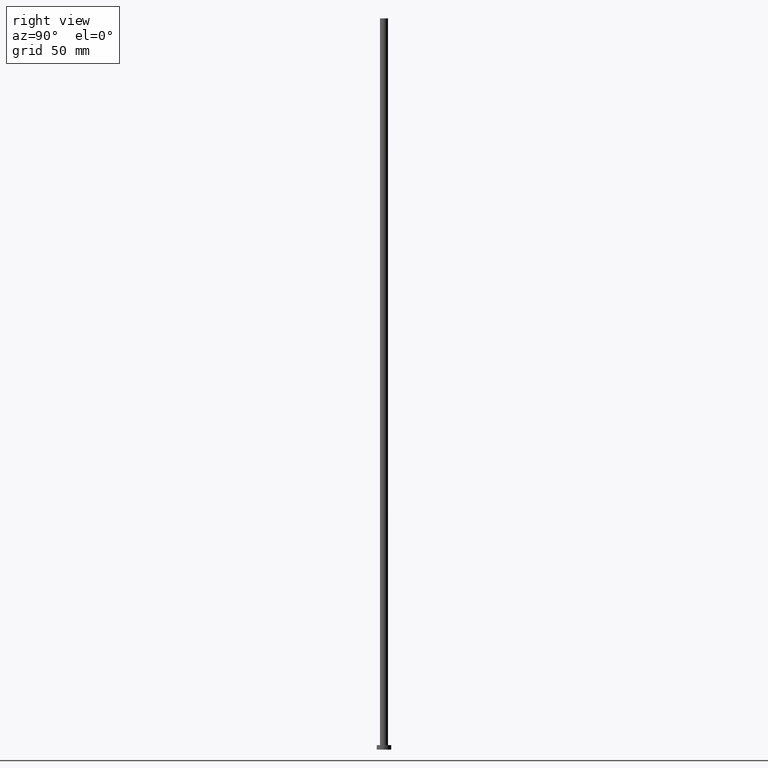
[diagram: clean part render]
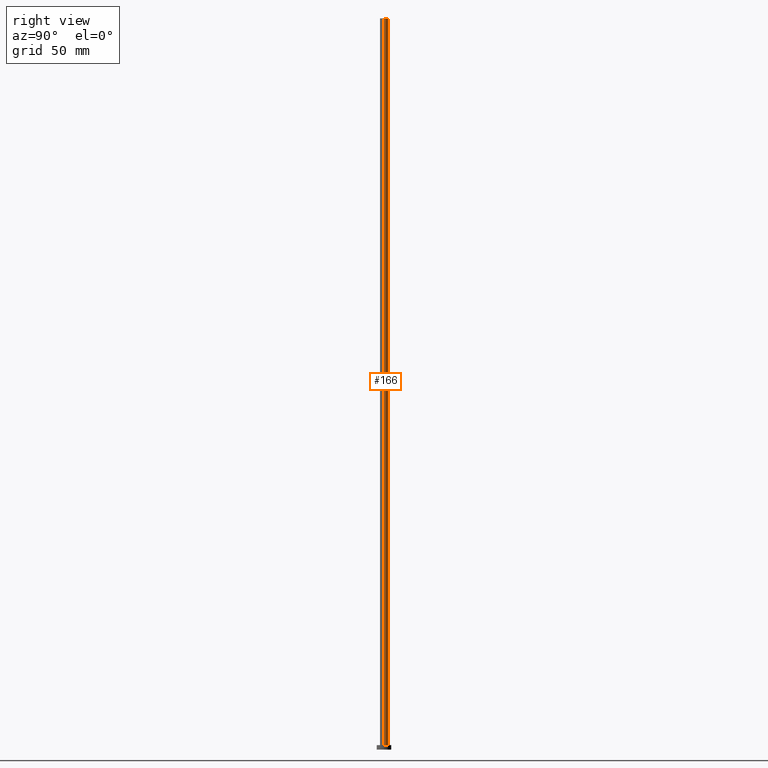
[diagram: same view with one face highlighted and labeled with its STEP entity id]
A machine part, right view. The second image highlights one B-rep face of the part: STEP entity #166.
In plain terms, the highlighted cylindrical surface (edge-blend (fillet) strip) has radius 2.75 mm, axis along (-0, -0, -1).
Its self-contained STEP definition (entity closure, byte-faithful):
#6 = VERTEX_POINT ( 'NONE', #249 ) ;
#14 = CARTESIAN_POINT ( 'NONE',  ( 2.750000000000000000, 3.367778697655220519E-16, 500.0000000000000000 ) ) ;
#15 = DIRECTION ( 'NONE',  ( -0.000000000000000000, -0.000000000000000000, -1.000000000000000000 ) ) ;
#31 = DIRECTION ( 'NONE',  ( 0.000000000000000000, 0.000000000000000000, 1.000000000000000000 ) ) ;
#42 = CARTESIAN_POINT ( 'NONE',  ( 0.000000000000000000, 0.000000000000000000, 500.0000000000000000 ) ) ;
#48 = EDGE_CURVE ( 'NONE', #6, #70, #109, .T. ) ;
#49 = AXIS2_PLACEMENT_3D ( 'NONE', #42, #242, #121 ) ;
#54 = CARTESIAN_POINT ( 'NONE',  ( 0.000000000000000000, 0.000000000000000000, 3.000000000000000000 ) ) ;
#58 = CYLINDRICAL_SURFACE ( 'NONE', #49, 2.750000000000000000 ) ;
#59 = LINE ( 'NONE', #14, #207 ) ;
#64 = FACE_OUTER_BOUND ( 'NONE', #123, .T. ) ;
#70 = VERTEX_POINT ( 'NONE', #195 ) ;
#71 = CARTESIAN_POINT ( 'NONE',  ( 2.750000000000000000, 3.367778697655220519E-16, 500.0000000000000000 ) ) ;
#72 = DIRECTION ( 'NONE',  ( 0.000000000000000000, 0.000000000000000000, 1.000000000000000000 ) ) ;
#75 = EDGE_CURVE ( 'NONE', #99, #230, #108, .T. ) ;
#81 = AXIS2_PLACEMENT_3D ( 'NONE', #54, #31, #112 ) ;
#90 = ORIENTED_EDGE ( 'NONE', *, *, #75, .F. ) ;
#99 = VERTEX_POINT ( 'NONE', #71 ) ;
#108 = CIRCLE ( 'NONE', #247, 2.750000000000000000 ) ;
#109 = CIRCLE ( 'NONE', #81, 2.750000000000000000 ) ;
#112 = DIRECTION ( 'NONE',  ( 1.000000000000000000, 0.000000000000000000, 0.000000000000000000 ) ) ;
#121 = DIRECTION ( 'NONE',  ( -1.000000000000000000, 0.000000000000000000, 0.000000000000000000 ) ) ;
#123 = EDGE_LOOP ( 'NONE', ( #90, #158, #159, #186 ) ) ;
#158 = ORIENTED_EDGE ( 'NONE', *, *, #199, .T. ) ;
#159 = ORIENTED_EDGE ( 'NONE', *, *, #48, .T. ) ;
#166 = ADVANCED_FACE ( 'NONE', ( #64 ), #58, .T. ) ;
#182 = LINE ( 'NONE', #212, #196 ) ;
#186 = ORIENTED_EDGE ( 'NONE', *, *, #188, .F. ) ;
#188 = EDGE_CURVE ( 'NONE', #230, #70, #182, .T. ) ;
#195 = CARTESIAN_POINT ( 'NONE',  ( -2.750000000000000000, 0.000000000000000000, 3.000000000000000000 ) ) ;
#196 = VECTOR ( 'NONE', #198, 1000.000000000000000 ) ;
#198 = DIRECTION ( 'NONE',  ( -0.000000000000000000, -0.000000000000000000, -1.000000000000000000 ) ) ;
#199 = EDGE_CURVE ( 'NONE', #99, #6, #59, .T. ) ;
#207 = VECTOR ( 'NONE', #15, 1000.000000000000000 ) ;
#212 = CARTESIAN_POINT ( 'NONE',  ( -2.750000000000000000, 0.000000000000000000, 500.0000000000000000 ) ) ;
#230 = VERTEX_POINT ( 'NONE', #246 ) ;
#234 = CARTESIAN_POINT ( 'NONE',  ( 0.000000000000000000, 0.000000000000000000, 500.0000000000000000 ) ) ;
#236 = DIRECTION ( 'NONE',  ( 1.000000000000000000, 0.000000000000000000, 0.000000000000000000 ) ) ;
#242 = DIRECTION ( 'NONE',  ( -0.000000000000000000, -0.000000000000000000, -1.000000000000000000 ) ) ;
#246 = CARTESIAN_POINT ( 'NONE',  ( -2.750000000000000000, 0.000000000000000000, 500.0000000000000000 ) ) ;
#247 = AXIS2_PLACEMENT_3D ( 'NONE', #234, #72, #236 ) ;
#249 = CARTESIAN_POINT ( 'NONE',  ( 2.750000000000000000, 3.367778697655220519E-16, 3.000000000000000000 ) ) ;